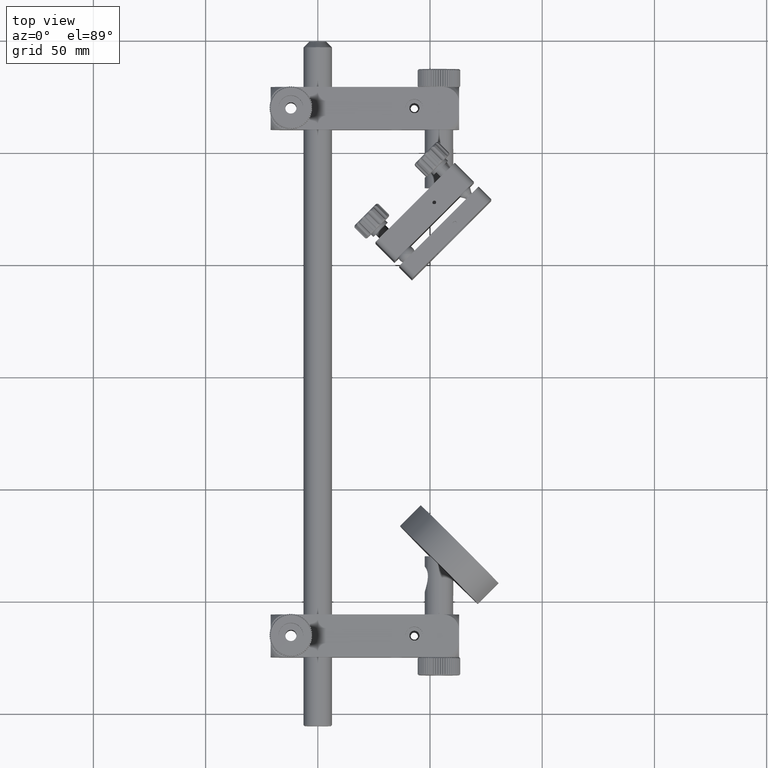
[diagram: clean part render]
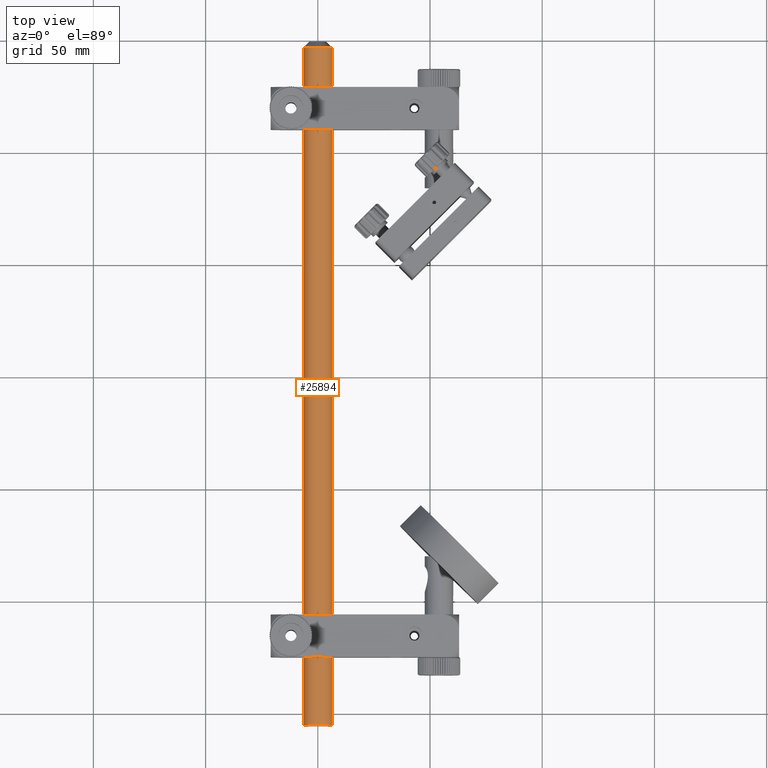
[diagram: same view with one face highlighted and labeled with its STEP entity id]
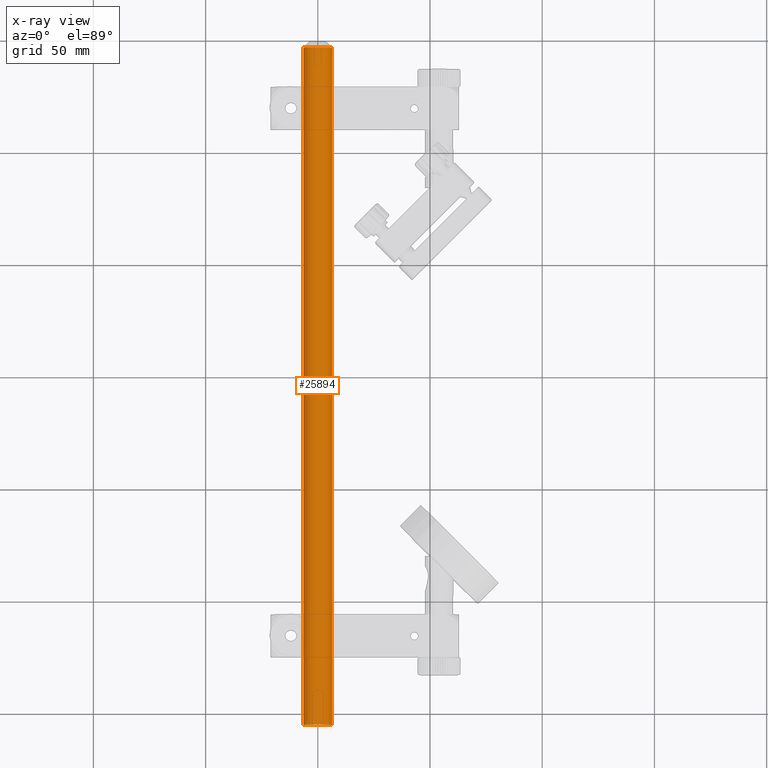
[diagram: x-ray of the same camera — body ghosted, the highlighted face saturated]
A machine part, top view. The second image highlights one B-rep face of the part: STEP entity #25894.
The next image is the same camera in x-ray: the body ghosted, the highlighted face saturated — about 0% of this face is hidden behind the body in this view.
In plain terms, the highlighted cylindrical surface (edge-blend (fillet) strip) has radius 6.35 mm, axis along (0, -1, 0).
Its self-contained STEP definition (entity closure, byte-faithful):
#1091 = DIRECTION ( 'NONE',  ( 2.907736376900074000E-030, -1.000000000000000000, 8.131157113374914500E-016 ) ) ;
#2968 = AXIS2_PLACEMENT_3D ( 'NONE', #27992, #1091, #45559 ) ;
#3035 = FACE_OUTER_BOUND ( 'NONE', #35361, .T. ) ;
#3163 = AXIS2_PLACEMENT_3D ( 'NONE', #14291, #3260, #10223 ) ;
#3260 = DIRECTION ( 'NONE',  ( -2.907736376900074000E-030, 1.000000000000000000, -8.131157113374914500E-016 ) ) ;
#3806 = DIRECTION ( 'NONE',  ( 1.000000000000000000, 0.0000000000000000000, 1.993726329384205900E-014 ) ) ;
#5310 = CARTESIAN_POINT ( 'NONE',  ( 6.350000000000002300, 399.1946268229316400, -2.462548459916038800E-013 ) ) ;
#5471 = DIRECTION ( 'NONE',  ( 2.907736376900074000E-030, -1.000000000000000000, 8.131157113374914500E-016 ) ) ;
#6709 = VECTOR ( 'NONE', #18059, 1000.000000000000000 ) ;
#7030 = VERTEX_POINT ( 'NONE', #34061 ) ;
#10223 = DIRECTION ( 'NONE',  ( 1.000000000000000000, 0.0000000000000000000, 3.973380604393035400E-016 ) ) ;
#10278 = ORIENTED_EDGE ( 'NONE', *, *, #23783, .T. ) ;
#12466 = CIRCLE ( 'NONE', #39782, 6.350000000000002300 ) ;
#14291 = CARTESIAN_POINT ( 'NONE',  ( -1.453868188450038100E-030, 94.69462682293166700, -4.065578556687507000E-016 ) ) ;
#18059 = DIRECTION ( 'NONE',  ( 2.907736376900074000E-030, -1.000000000000000000, 8.131157113374914500E-016 ) ) ;
#21323 = EDGE_CURVE ( 'NONE', #22682, #28267, #41699, .T. ) ;
#21684 = CARTESIAN_POINT ( 'NONE',  ( -6.350000000000002300, 399.1946268229316400, -2.505233886417244900E-013 ) ) ;
#22036 = CARTESIAN_POINT ( 'NONE',  ( -8.795902540122722700E-028, 396.6946268229316400, -2.459675026795911900E-013 ) ) ;
#22682 = VERTEX_POINT ( 'NONE', #23605 ) ;
#23605 = CARTESIAN_POINT ( 'NONE',  ( -6.350000000000002300, 396.6946268229316400, -1.257101269514195300E-013 ) ) ;
#23783 = EDGE_CURVE ( 'NONE', #28267, #28182, #30792, .T. ) ;
#24484 = VECTOR ( 'NONE', #5471, 1000.000000000000000 ) ;
#25894 = ADVANCED_FACE ( 'NONE', ( #3035 ), #26380, .T. ) ;
#26380 = CYLINDRICAL_SURFACE ( 'NONE', #2968, 6.350000000000002300 ) ;
#26921 = EDGE_CURVE ( 'NONE', #7030, #28182, #31556, .T. ) ;
#27967 = ORIENTED_EDGE ( 'NONE', *, *, #26921, .F. ) ;
#27992 = CARTESIAN_POINT ( 'NONE',  ( -8.868595949545226400E-028, 399.1946268229316400, -2.480002919579348800E-013 ) ) ;
#28182 = VERTEX_POINT ( 'NONE', #34995 ) ;
#28267 = VERTEX_POINT ( 'NONE', #29404 ) ;
#29303 = ORIENTED_EDGE ( 'NONE', *, *, #21323, .T. ) ;
#29404 = CARTESIAN_POINT ( 'NONE',  ( -6.350000000000002300, 94.69462682293166700, -1.257101269514195300E-013 ) ) ;
#30792 = CIRCLE ( 'NONE', #3163, 6.350000000000002300 ) ;
#31556 = LINE ( 'NONE', #5310, #24484 ) ;
#34061 = CARTESIAN_POINT ( 'NONE',  ( 6.350000000000002300, 396.6946268229316400, -1.214415843012989500E-013 ) ) ;
#34995 = CARTESIAN_POINT ( 'NONE',  ( 6.350000000000002300, 94.69462682293166700, -1.214415843012989500E-013 ) ) ;
#35361 = EDGE_LOOP ( 'NONE', ( #27967, #45582, #29303, #10278 ) ) ;
#39516 = EDGE_CURVE ( 'NONE', #7030, #22682, #12466, .T. ) ;
#39782 = AXIS2_PLACEMENT_3D ( 'NONE', #22036, #48129, #3806 ) ;
#41699 = LINE ( 'NONE', #21684, #6709 ) ;
#45559 = DIRECTION ( 'NONE',  ( -1.000000000000000000, 0.0000000000000000000, -3.973380604393002400E-016 ) ) ;
#45582 = ORIENTED_EDGE ( 'NONE', *, *, #39516, .T. ) ;
#48129 = DIRECTION ( 'NONE',  ( 2.907736376900074000E-030, -1.000000000000000000, 8.131157113374914500E-016 ) ) ;